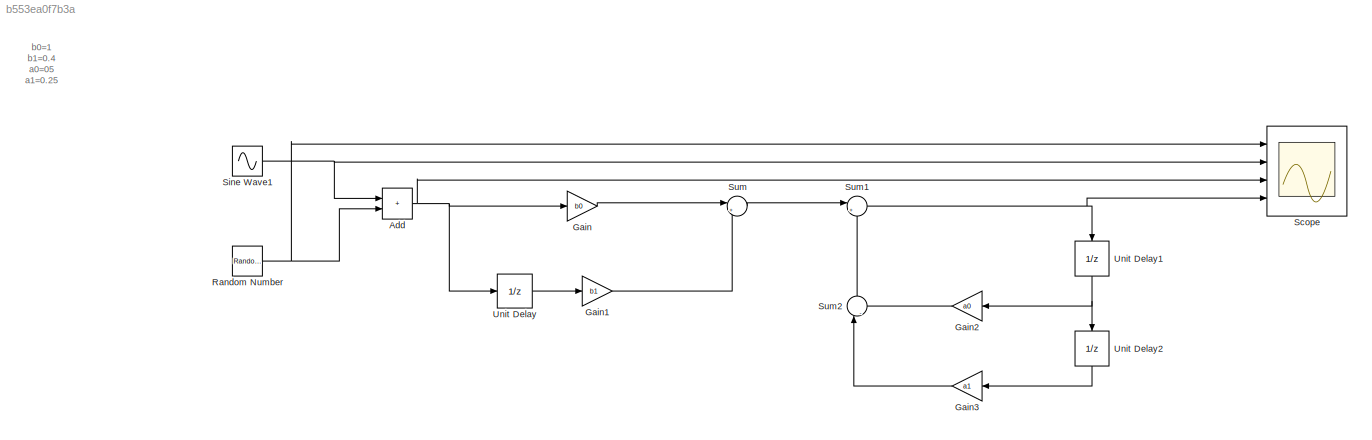
MODEL slx_b553ea0f7b3a
KIND model
CONFIG AbsTol = auto
CONFIG EnableMultiTasking = off
CONFIG FixedStep = auto
CONFIG MaxStep = auto
CONFIG MinStep = auto
CONFIG PostLoadFcn = b0=1;\nb1=0.4;\na0=0.5;\na1=0.25;
CONFIG RelTol = 1e-3
CONFIG SampleTimeConstraint = Unconstrained
CONFIG SolverName = FixedStepAuto
CONFIG StartTime = 0.0
CONFIG StopTime = 10.0
WORKSPACE source: mxarray member
WORKSPACE a0: Simulink.Parameter (value not decoded)
WORKSPACE a1: Simulink.Parameter (value not decoded)
WORKSPACE b0: Simulink.Parameter (value not decoded)
WORKSPACE b1: Simulink.Parameter (value not decoded)
BLOCK [Sum] Add
  IconShape = rectangular
  Ports = [2, 1]
BLOCK [Gain] Gain
  Gain = b0
BLOCK [Gain] Gain1
  Gain = b1
BLOCK [Gain] Gain2
  Gain = a0
BLOCK [Gain] Gain3
  Gain = a1
BLOCK [RandomNumber] Random Number
  SampleTime = 0.1
BLOCK [Scope] Scope
  Floating = off
  NumInputPorts = 4
  Ports = [4]
  ScopeSpecificationString = Simulink.scopes.TimeScopeBlockCfg('CurrentConfiguration', extmgr.ConfigurationSet(extmgr.Configuration('Core','General UI',true),extmgr.Configuration('Core','Source UI',true),extmgr.Configuration('Sources','WiredSimulink',true),extmgr.Configuration('Visuals','Time Domain',true,'SerializedDisplays',{struct('MinYLimReal','-3.04551','MaxYLimReal','2.58116','YLabelReal','','MinYLimMag','0.00000','MaxY...<+3409ch>
BLOCK [Sin] Sine Wave1
  Amplitude = 50
  Ports = [0, 1]
  SampleTime = 0
BLOCK [Sum] Sum
  Inputs = |++
  Ports = [2, 1]
BLOCK [Sum] Sum1
  Inputs = |++
  Ports = [2, 1]
BLOCK [Sum] Sum2
  Inputs = |-+
  NameLocation = right
  Ports = [2, 1]
BLOCK [UnitDelay] Unit Delay
  HasFrameUpgradeWarning = on
  SampleTime = -1
BLOCK [UnitDelay] Unit Delay1
  HasFrameUpgradeWarning = on
  NameLocation = right
  SampleTime = -1
BLOCK [UnitDelay] Unit Delay2
  HasFrameUpgradeWarning = on
  NameLocation = left
  SampleTime = -1
ANNOTATION (root): b0=1 b1=0.4 a0=05 a1=0.25
NET Add:1 -> Gain:1, Scope:3, Unit Delay:1
LINE Gain1:1 -> Sum:2
LINE Gain2:1 -> Sum2:2
LINE Gain3:1 -> Sum2:1
LINE Gain:1 -> Sum:1
NET Random Number:1 -> Add:2, Scope:1
NET Sine Wave1:1 -> Add:1, Scope:2
NET Sum1:1 -> Scope:4, Unit Delay1:1
LINE Sum2:1 -> Sum1:2
LINE Sum:1 -> Sum1:1
NET Unit Delay1:1 -> Gain2:1, Unit Delay2:1
LINE Unit Delay2:1 -> Gain3:1
LINE Unit Delay:1 -> Gain1:1
note: NET lines group one-source signal fan-out (src -> all destinations, sorted); 1:1 wires keep LINE
